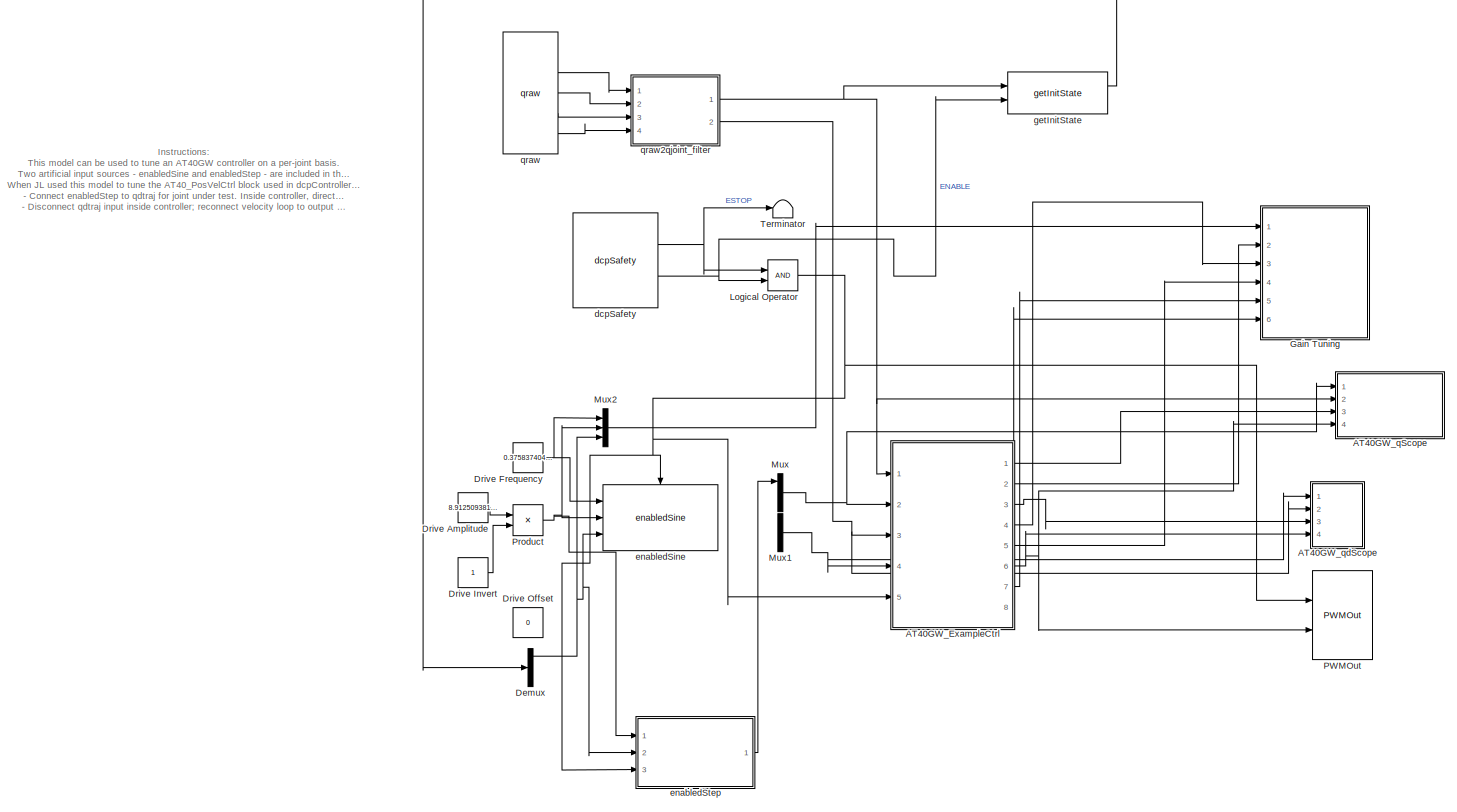
[diagram: root canvas - part 1/1, most of the canvas]
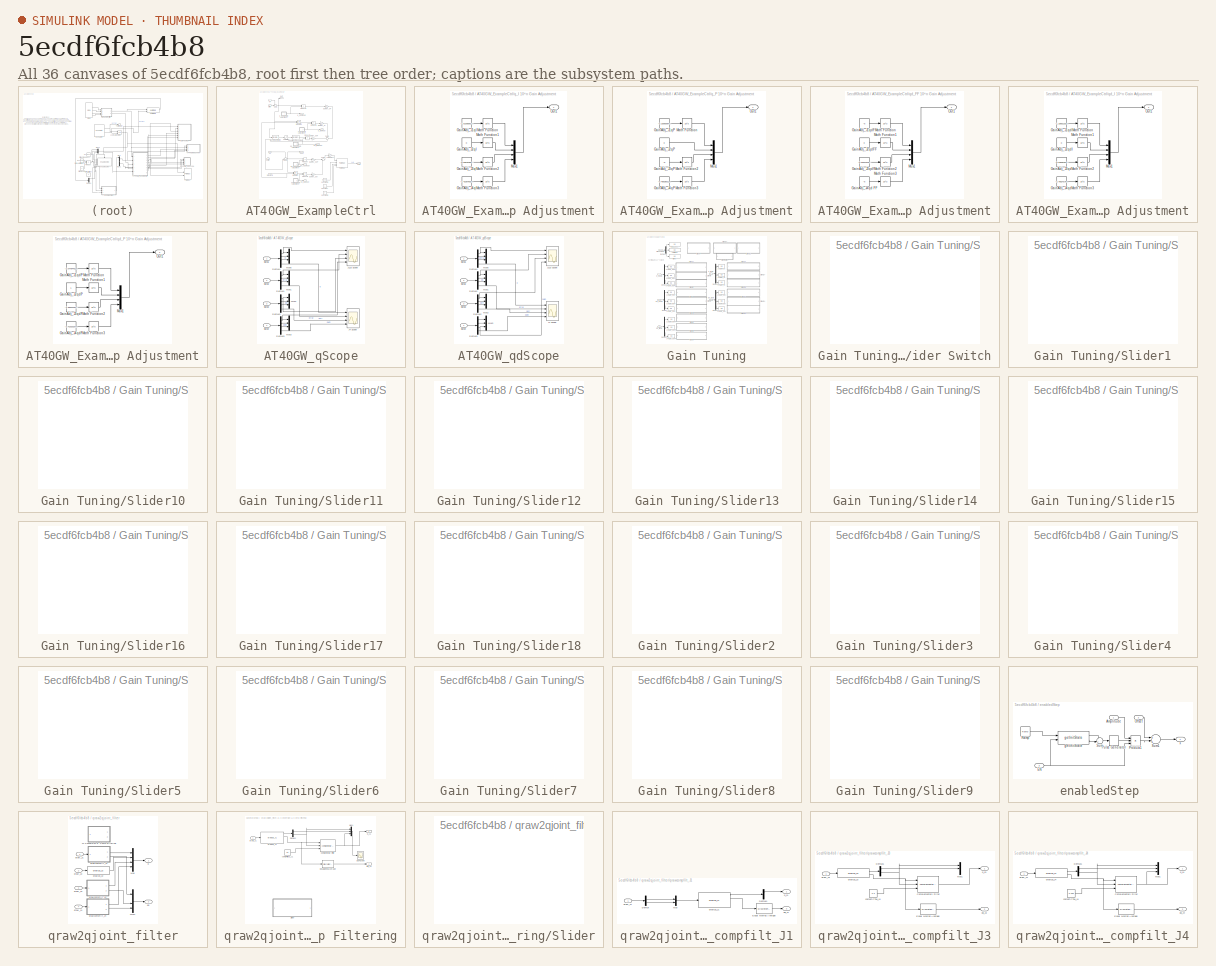
[diagram: thumbnail index - all 36 canvases of the model, root first then tree order]
MODEL slx_5ecdf6fcb4b8
KIND model
CONFIG AbsTol = auto
CONFIG EnableMultiTasking = on
CONFIG FixedStep = 0.001
CONFIG MaxStep = auto
CONFIG MinStep = auto
CONFIG RelTol = 1e-3
CONFIG SampleTimeConstraint = Unconstrained
CONFIG Solver = ode5
CONFIG SolverName = ode5
CONFIG StartTime = 0.0
CONFIG StopTime = inf
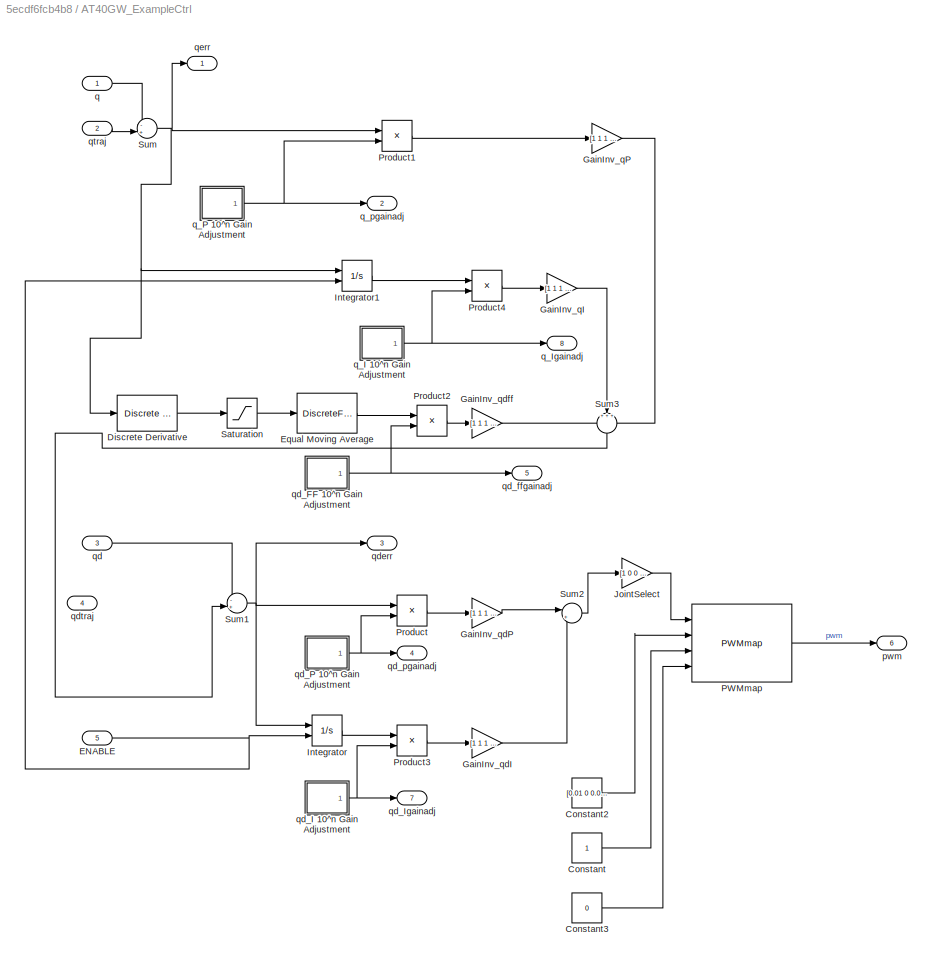
BLOCK [SubSystem] AT40GW_ExampleCtrl
  Ports = [5, 8]
  RequestExecContextInheritance = off
  Variant = off
BLOCK [Constant] AT40GW_ExampleCtrl/Constant
BLOCK [Constant] AT40GW_ExampleCtrl/Constant2
  Value = [0.01 0 0.001 0.001]
BLOCK [Constant] AT40GW_ExampleCtrl/Constant3
  Value = 0
BLOCK [Reference] AT40GW_ExampleCtrl/Discrete Derivative  REF=simulink/Discrete/Discrete Derivative
  Ports = [1, 1]
  SourceBlock = simulink/Discrete/Discrete Derivative
  SourceType = Discrete Derivative
BLOCK [Inport] AT40GW_ExampleCtrl/ENABLE
  IconDisplay = Port number
  Port = 5
BLOCK [DiscreteFir] AT40GW_ExampleCtrl/Equal Moving Average
  Coefficients = repmat([1/250],1,250)
  InputPortMap = u0
  InputProcessing = Columns as channels (frame based)
  OutputPortMap = o0
  Ports = [1, 1]
BLOCK [Gain] AT40GW_ExampleCtrl/GainInv_qI
  Gain = [1 1 1 1]
  OutDataTypeStr = Inherit: Inherit via internal rule
  ParamDataTypeStr = Inherit: Inherit via internal rule
  SaturateOnIntegerOverflow = off
BLOCK [Gain] AT40GW_ExampleCtrl/GainInv_qP
  Gain = [1 1 1 1]
  OutDataTypeStr = Inherit: Inherit via internal rule
  ParamDataTypeStr = Inherit: Inherit via internal rule
  SaturateOnIntegerOverflow = off
BLOCK [Gain] AT40GW_ExampleCtrl/GainInv_qdI
  Gain = [1 1 1 -1]
  OutDataTypeStr = Inherit: Inherit via internal rule
  ParamDataTypeStr = Inherit: Inherit via internal rule
  SaturateOnIntegerOverflow = off
BLOCK [Gain] AT40GW_ExampleCtrl/GainInv_qdP
  Gain = [1 1 1 -1]
  OutDataTypeStr = Inherit: Inherit via internal rule
  ParamDataTypeStr = Inherit: Inherit via internal rule
  SaturateOnIntegerOverflow = off
BLOCK [Gain] AT40GW_ExampleCtrl/GainInv_qdff
  Gain = [1 1 1 1]
  OutDataTypeStr = Inherit: Inherit via internal rule
  ParamDataTypeStr = Inherit: Inherit via internal rule
  SaturateOnIntegerOverflow = off
BLOCK [Integrator] AT40GW_ExampleCtrl/Integrator
  ExternalReset = rising
  LimitOutput = on
  LowerSaturationLimit = [-100 -10 -10 -1000]
  Ports = [2, 1]
  UpperSaturationLimit = [100 10 10 1000]
BLOCK [Integrator] AT40GW_ExampleCtrl/Integrator1
  ExternalReset = rising
  LimitOutput = on
  LowerSaturationLimit = [-10 -2 -10 -20]
  Ports = [2, 1]
  UpperSaturationLimit = [10 2 10 20]
BLOCK [Gain] AT40GW_ExampleCtrl/JointSelect
  Gain = [1 0 0 0]
  OutDataTypeStr = Inherit: Inherit via internal rule
  ParamDataTypeStr = Inherit: Inherit via internal rule
  SaturateOnIntegerOverflow = off
BLOCK [Reference] AT40GW_ExampleCtrl/PWMmap  REF=dcpctrl/PWMmap
  Ports = [4, 1]
  SourceBlock = dcpctrl/PWMmap
  SourceType = PWMmap
BLOCK [Product] AT40GW_ExampleCtrl/Product
  InputSameDT = off
  OutDataTypeStr = Inherit: Inherit via internal rule
  Ports = [2, 1]
  RndMeth = Floor
  SaturateOnIntegerOverflow = off
BLOCK [Product] AT40GW_ExampleCtrl/Product1
  InputSameDT = off
  OutDataTypeStr = Inherit: Inherit via internal rule
  Ports = [2, 1]
  RndMeth = Floor
  SaturateOnIntegerOverflow = off
BLOCK [Product] AT40GW_ExampleCtrl/Product2
  InputSameDT = off
  OutDataTypeStr = Inherit: Inherit via internal rule
  Ports = [2, 1]
  RndMeth = Floor
  SaturateOnIntegerOverflow = off
BLOCK [Product] AT40GW_ExampleCtrl/Product3
  InputSameDT = off
  OutDataTypeStr = Inherit: Inherit via internal rule
  Ports = [2, 1]
  RndMeth = Floor
  SaturateOnIntegerOverflow = off
BLOCK [Product] AT40GW_ExampleCtrl/Product4
  InputSameDT = off
  OutDataTypeStr = Inherit: Inherit via internal rule
  Ports = [2, 1]
  RndMeth = Floor
  SaturateOnIntegerOverflow = off
BLOCK [Saturate] AT40GW_ExampleCtrl/Saturation
  InputPortMap = u0
  LowerLimit = -100
  Ports = [1, 1]
  UpperLimit = 100
BLOCK [Sum] AT40GW_ExampleCtrl/Sum
  IconShape = round
  InputSameDT = off
  Inputs = -+|
  OutDataTypeStr = Inherit: Inherit via internal rule
  Ports = [2, 1]
  SaturateOnIntegerOverflow = off
BLOCK [Sum] AT40GW_ExampleCtrl/Sum1
  IconShape = round
  InputSameDT = off
  Inputs = -+|
  OutDataTypeStr = Inherit: Inherit via internal rule
  Ports = [2, 1]
  SaturateOnIntegerOverflow = off
BLOCK [Sum] AT40GW_ExampleCtrl/Sum2
  IconShape = round
  InputSameDT = off
  Inputs = |++
  OutDataTypeStr = Inherit: Inherit via internal rule
  Ports = [2, 1]
  SaturateOnIntegerOverflow = off
BLOCK [Sum] AT40GW_ExampleCtrl/Sum3
  IconShape = round
  InputSameDT = off
  Inputs = +++
  OutDataTypeStr = Inherit: Inherit via internal rule
  Ports = [3, 1]
  SaturateOnIntegerOverflow = off
BLOCK [Outport] AT40GW_ExampleCtrl/pwm
  IconDisplay = Port number
  Port = 6
BLOCK [Inport] AT40GW_ExampleCtrl/q
  IconDisplay = Port number
BLOCK [SubSystem] AT40GW_ExampleCtrl/q_I 10^n Gain Adjustment
  Ports = [0, 1]
  RequestExecContextInheritance = off
  Variant = off
BLOCK [Constant] AT40GW_ExampleCtrl/q_I 10^n Gain Adjustment/GainAdj_J1qI
  Value = -1.010989010989
BLOCK [Constant] AT40GW_ExampleCtrl/q_I 10^n Gain Adjustment/GainAdj_J2qI
  Value = 0
BLOCK [Constant] AT40GW_ExampleCtrl/q_I 10^n Gain Adjustment/GainAdj_J3qI
  Value = -0.505494505495
BLOCK [Constant] AT40GW_ExampleCtrl/q_I 10^n Gain Adjustment/GainAdj_J4qI
  Value = -1.423076923077
BLOCK [Math] AT40GW_ExampleCtrl/q_I 10^n Gain Adjustment/Math Function
  Operator = 10^u
  Ports = [1, 1]
BLOCK [Math] AT40GW_ExampleCtrl/q_I 10^n Gain Adjustment/Math Function1
  Operator = 10^u
  Ports = [1, 1]
BLOCK [Math] AT40GW_ExampleCtrl/q_I 10^n Gain Adjustment/Math Function2
  Operator = 10^u
  Ports = [1, 1]
BLOCK [Math] AT40GW_ExampleCtrl/q_I 10^n Gain Adjustment/Math Function3
  Operator = 10^u
  Ports = [1, 1]
BLOCK [Mux] AT40GW_ExampleCtrl/q_I 10^n Gain Adjustment/Mux1
  DisplayOption = bar
  Ports = [4, 1]
BLOCK [Outport] AT40GW_ExampleCtrl/q_I 10^n Gain Adjustment/Out1
  IconDisplay = Port number
BLOCK [Outport] AT40GW_ExampleCtrl/q_Igainadj
  IconDisplay = Port number
  Port = 8
BLOCK [SubSystem] AT40GW_ExampleCtrl/q_P 10^n Gain Adjustment
  Ports = [0, 1]
  RequestExecContextInheritance = off
  Variant = off
BLOCK [Constant] AT40GW_ExampleCtrl/q_P 10^n Gain Adjustment/GainAdj_J1qP
  Value = -0.169590643275
BLOCK [Constant] AT40GW_ExampleCtrl/q_P 10^n Gain Adjustment/GainAdj_J2qP
  Value = 0
BLOCK [Constant] AT40GW_ExampleCtrl/q_P 10^n Gain Adjustment/GainAdj_J3qP
  Value = -5
BLOCK [Constant] AT40GW_ExampleCtrl/q_P 10^n Gain Adjustment/GainAdj_J4qP
  Value = -0.485380116959
BLOCK [Math] AT40GW_ExampleCtrl/q_P 10^n Gain Adjustment/Math Function
  Operator = 10^u
  Ports = [1, 1]
BLOCK [Math] AT40GW_ExampleCtrl/q_P 10^n Gain Adjustment/Math Function2
  Operator = 10^u
  Ports = [1, 1]
BLOCK [Math] AT40GW_ExampleCtrl/q_P 10^n Gain Adjustment/Math Function3
  Operator = 10^u
  Ports = [1, 1]
BLOCK [Mux] AT40GW_ExampleCtrl/q_P 10^n Gain Adjustment/Mux1
  DisplayOption = bar
  Ports = [4, 1]
BLOCK [Outport] AT40GW_ExampleCtrl/q_P 10^n Gain Adjustment/Out1
  IconDisplay = Port number
BLOCK [Outport] AT40GW_ExampleCtrl/q_pgainadj
  IconDisplay = Port number
  Port = 2
BLOCK [Inport] AT40GW_ExampleCtrl/qd
  IconDisplay = Port number
  Port = 3
BLOCK [SubSystem] AT40GW_ExampleCtrl/qd_FF 10^n Gain Adjustment
  Ports = [0, 1]
  RequestExecContextInheritance = off
  Variant = off
BLOCK [Constant] AT40GW_ExampleCtrl/qd_FF 10^n Gain Adjustment/GainAdj_J1qdFF
  Value = -5
BLOCK [Constant] AT40GW_ExampleCtrl/qd_FF 10^n Gain Adjustment/GainAdj_J2qdFF
  Value = 0
BLOCK [Constant] AT40GW_ExampleCtrl/qd_FF 10^n Gain Adjustment/GainAdj_J3qdFF
  Value = -0.940119760479
BLOCK [Constant] AT40GW_ExampleCtrl/qd_FF 10^n Gain Adjustment/GainAdj_J4qd FF
  Value = -5
BLOCK [Math] AT40GW_ExampleCtrl/qd_FF 10^n Gain Adjustment/Math Function
  Operator = 10^u
  Ports = [1, 1]
BLOCK [Math] AT40GW_ExampleCtrl/qd_FF 10^n Gain Adjustment/Math Function1
  Operator = 10^u
  Ports = [1, 1]
BLOCK [Math] AT40GW_ExampleCtrl/qd_FF 10^n Gain Adjustment/Math Function2
  Operator = 10^u
  Ports = [1, 1]
BLOCK [Math] AT40GW_ExampleCtrl/qd_FF 10^n Gain Adjustment/Math Function3
  Operator = 10^u
  Ports = [1, 1]
BLOCK [Mux] AT40GW_ExampleCtrl/qd_FF 10^n Gain Adjustment/Mux1
  DisplayOption = bar
  Ports = [4, 1]
BLOCK [Outport] AT40GW_ExampleCtrl/qd_FF 10^n Gain Adjustment/Out1
  IconDisplay = Port number
BLOCK [SubSystem] AT40GW_ExampleCtrl/qd_I 10^n Gain Adjustment
  Ports = [0, 1]
  RequestExecContextInheritance = off
  Variant = off
BLOCK [Constant] AT40GW_ExampleCtrl/qd_I 10^n Gain Adjustment/GainAdj_J1qdI
  Value = -1.186813186813
BLOCK [Constant] AT40GW_ExampleCtrl/qd_I 10^n Gain Adjustment/GainAdj_J2qdI
  Value = 0
BLOCK [Constant] AT40GW_ExampleCtrl/qd_I 10^n Gain Adjustment/GainAdj_J3qdI
  Value = -0.945054945055
BLOCK [Constant] AT40GW_ExampleCtrl/qd_I 10^n Gain Adjustment/GainAdj_J4qdI
  Value = -2.758241758242
BLOCK [Math] AT40GW_ExampleCtrl/qd_I 10^n Gain Adjustment/Math Function
  Operator = 10^u
  Ports = [1, 1]
BLOCK [Math] AT40GW_ExampleCtrl/qd_I 10^n Gain Adjustment/Math Function1
  Operator = 10^u
  Ports = [1, 1]
BLOCK [Math] AT40GW_ExampleCtrl/qd_I 10^n Gain Adjustment/Math Function2
  Operator = 10^u
  Ports = [1, 1]
BLOCK [Math] AT40GW_ExampleCtrl/qd_I 10^n Gain Adjustment/Math Function3
  Operator = 10^u
  Ports = [1, 1]
BLOCK [Mux] AT40GW_ExampleCtrl/qd_I 10^n Gain Adjustment/Mux1
  DisplayOption = bar
  Ports = [4, 1]
BLOCK [Outport] AT40GW_ExampleCtrl/qd_I 10^n Gain Adjustment/Out1
  IconDisplay = Port number
BLOCK [Outport] AT40GW_ExampleCtrl/qd_Igainadj
  IconDisplay = Port number
  Port = 7
BLOCK [SubSystem] AT40GW_ExampleCtrl/qd_P 10^n Gain Adjustment
  Ports = [0, 1]
  RequestExecContextInheritance = off
  Variant = off
BLOCK [Constant] AT40GW_ExampleCtrl/qd_P 10^n Gain Adjustment/GainAdj_J1qdP
  Value = -2.077844311377
BLOCK [Constant] AT40GW_ExampleCtrl/qd_P 10^n Gain Adjustment/GainAdj_J2qdP
BLOCK [Constant] AT40GW_ExampleCtrl/qd_P 10^n Gain Adjustment/GainAdj_J3qdP
  Value = -1.994011976048
BLOCK [Constant] AT40GW_ExampleCtrl/qd_P 10^n Gain Adjustment/GainAdj_J4qdP
  Value = -3.419161676647
BLOCK [Math] AT40GW_ExampleCtrl/qd_P 10^n Gain Adjustment/Math Function
  Operator = 10^u
  Ports = [1, 1]
BLOCK [Math] AT40GW_ExampleCtrl/qd_P 10^n Gain Adjustment/Math Function1
  Operator = 10^u
  Ports = [1, 1]
BLOCK [Math] AT40GW_ExampleCtrl/qd_P 10^n Gain Adjustment/Math Function2
  Operator = 10^u
  Ports = [1, 1]
BLOCK [Math] AT40GW_ExampleCtrl/qd_P 10^n Gain Adjustment/Math Function3
  Operator = 10^u
  Ports = [1, 1]
BLOCK [Mux] AT40GW_ExampleCtrl/qd_P 10^n Gain Adjustment/Mux1
  DisplayOption = bar
  Ports = [4, 1]
BLOCK [Outport] AT40GW_ExampleCtrl/qd_P 10^n Gain Adjustment/Out1
  IconDisplay = Port number
BLOCK [Outport] AT40GW_ExampleCtrl/qd_ffgainadj
  IconDisplay = Port number
  Port = 5
BLOCK [Outport] AT40GW_ExampleCtrl/qd_pgainadj
  IconDisplay = Port number
  Port = 4
BLOCK [Outport] AT40GW_ExampleCtrl/qderr
  IconDisplay = Port number
  Port = 3
BLOCK [Inport] AT40GW_ExampleCtrl/qdtraj
  IconDisplay = Port number
  Port = 4
BLOCK [Outport] AT40GW_ExampleCtrl/qerr
  IconDisplay = Port number
BLOCK [Inport] AT40GW_ExampleCtrl/qtraj
  IconDisplay = Port number
  Port = 2
BLOCK [SubSystem] AT40GW_qScope
  AncestorBlock = dcpctrl/AT40GW_qScope
  Ports = [4]
  RequestExecContextInheritance = off
  Variant = off
BLOCK [Demux] AT40GW_qScope/Demux1
  DisplayOption = bar
  Ports = [1, 4]
BLOCK [Demux] AT40GW_qScope/Demux2
  DisplayOption = bar
  Ports = [1, 4]
BLOCK [Demux] AT40GW_qScope/Demux3
  DisplayOption = bar
  Ports = [1, 4]
BLOCK [Demux] AT40GW_qScope/Demux4
  DisplayOption = bar
  Ports = [1, 4]
BLOCK [Scope] AT40GW_qScope/J123 Scope
  NumInputPorts = 4
  Ports = [4]
  ScopeSpecificationString = Simulink.scopes.TimeScopeBlockCfg('CurrentConfiguration', extmgr.ConfigurationSet(extmgr.Configuration('Core','General UI',true,'FigureColor',[1 1 1]),extmgr.Configuration('Core','Source UI',true),extmgr.Configuration('Sources','WiredSimulink',true,'DataLoggingVariableName','ScopeData1'),extmgr.Configuration('Visuals','Time Domain',true,'SerializedDisplays',{struct('MinYLimReal','-1.50078','MaxYLi...<+5141ch>
BLOCK [Scope] AT40GW_qScope/J4 Scope
  NumInputPorts = 4
  Ports = [4]
  ScopeSpecificationString = Simulink.scopes.TimeScopeBlockCfg('CurrentConfiguration', extmgr.ConfigurationSet(extmgr.Configuration('Core','General UI',true,'FigureColor',[1 1 1]),extmgr.Configuration('Core','Source UI',true),extmgr.Configuration('Sources','WiredSimulink',true,'DataLoggingVariableName','ScopeData2'),extmgr.Configuration('Visuals','Time Domain',true,'SerializedDisplays',{struct('MinYLimReal','-131.8961','MaxYL...<+5196ch>
BLOCK [Mux] AT40GW_qScope/Mux1
  DisplayOption = bar
  Inputs = 3
  Ports = [3, 1]
BLOCK [Mux] AT40GW_qScope/Mux2
  DisplayOption = bar
  Inputs = 3
  Ports = [3, 1]
BLOCK [Mux] AT40GW_qScope/Mux3
  DisplayOption = bar
  Inputs = 3
  Ports = [3, 1]
BLOCK [Mux] AT40GW_qScope/Mux6
  DisplayOption = bar
  Inputs = 3
  Ports = [3, 1]
BLOCK [Inport] AT40GW_qScope/Signal1
  IconDisplay = Port number
BLOCK [Inport] AT40GW_qScope/Signal2
  IconDisplay = Port number
  Port = 2
BLOCK [Inport] AT40GW_qScope/Signal3
  IconDisplay = Port number
  Port = 3
BLOCK [Inport] AT40GW_qScope/Signal4
  IconDisplay = Port number
  Port = 4
BLOCK [SubSystem] AT40GW_qdScope
  AncestorBlock = dcpctrl/AT40GW_qScope
  Ports = [4]
  RequestExecContextInheritance = off
  Variant = off
BLOCK [Demux] AT40GW_qdScope/Demux1
  DisplayOption = bar
  Ports = [1, 4]
BLOCK [Demux] AT40GW_qdScope/Demux2
  DisplayOption = bar
  Ports = [1, 4]
BLOCK [Demux] AT40GW_qdScope/Demux3
  DisplayOption = bar
  Ports = [1, 4]
BLOCK [Demux] AT40GW_qdScope/Demux4
  DisplayOption = bar
  Ports = [1, 4]
BLOCK [Scope] AT40GW_qdScope/J123 Scope
  NumInputPorts = 4
  Ports = [4]
  ScopeSpecificationString = Simulink.scopes.TimeScopeBlockCfg('CurrentConfiguration', extmgr.ConfigurationSet(extmgr.Configuration('Core','General UI',true,'FigureColor',[1 1 1]),extmgr.Configuration('Core','Source UI',true),extmgr.Configuration('Sources','WiredSimulink',true,'DataLoggingVariableName','ScopeData1'),extmgr.Configuration('Visuals','Time Domain',true,'SerializedDisplays',{struct('MinYLimReal','-0.88493','MaxYLi...<+5185ch>
BLOCK [Scope] AT40GW_qdScope/J4 Scope
  NumInputPorts = 4
  Ports = [4]
  ScopeSpecificationString = Simulink.scopes.TimeScopeBlockCfg('CurrentConfiguration', extmgr.ConfigurationSet(extmgr.Configuration('Core','General UI',true,'FigureColor',[1 1 1]),extmgr.Configuration('Core','Source UI',true),extmgr.Configuration('Sources','WiredSimulink',true,'DataLoggingVariableName','ScopeData2'),extmgr.Configuration('Visuals','Time Domain',true,'SerializedDisplays',{struct('MinYLimReal','-32.99569','MaxYL...<+5175ch>
BLOCK [Mux] AT40GW_qdScope/Mux1
  DisplayOption = bar
  Inputs = 3
  Ports = [3, 1]
BLOCK [Mux] AT40GW_qdScope/Mux2
  DisplayOption = bar
  Inputs = 3
  Ports = [3, 1]
BLOCK [Mux] AT40GW_qdScope/Mux3
  DisplayOption = bar
  Inputs = 3
  Ports = [3, 1]
BLOCK [Mux] AT40GW_qdScope/Mux6
  DisplayOption = bar
  Inputs = 3
  Ports = [3, 1]
BLOCK [Inport] AT40GW_qdScope/Signal1
  IconDisplay = Port number
BLOCK [Inport] AT40GW_qdScope/Signal2
  IconDisplay = Port number
  Port = 2
BLOCK [Inport] AT40GW_qdScope/Signal3
  IconDisplay = Port number
  Port = 3
BLOCK [Inport] AT40GW_qdScope/Signal4
  IconDisplay = Port number
  Port = 4
BLOCK [Demux] Demux
  DisplayOption = bar
  Ports = [1, 4]
BLOCK [Constant] Drive Amplitude
  Value = 8.9125093813375
BLOCK [Constant] Drive Frequency
  Value = 0.3758374042884
BLOCK [Constant] Drive Invert
BLOCK [Constant] Drive Offset
  Value = 0
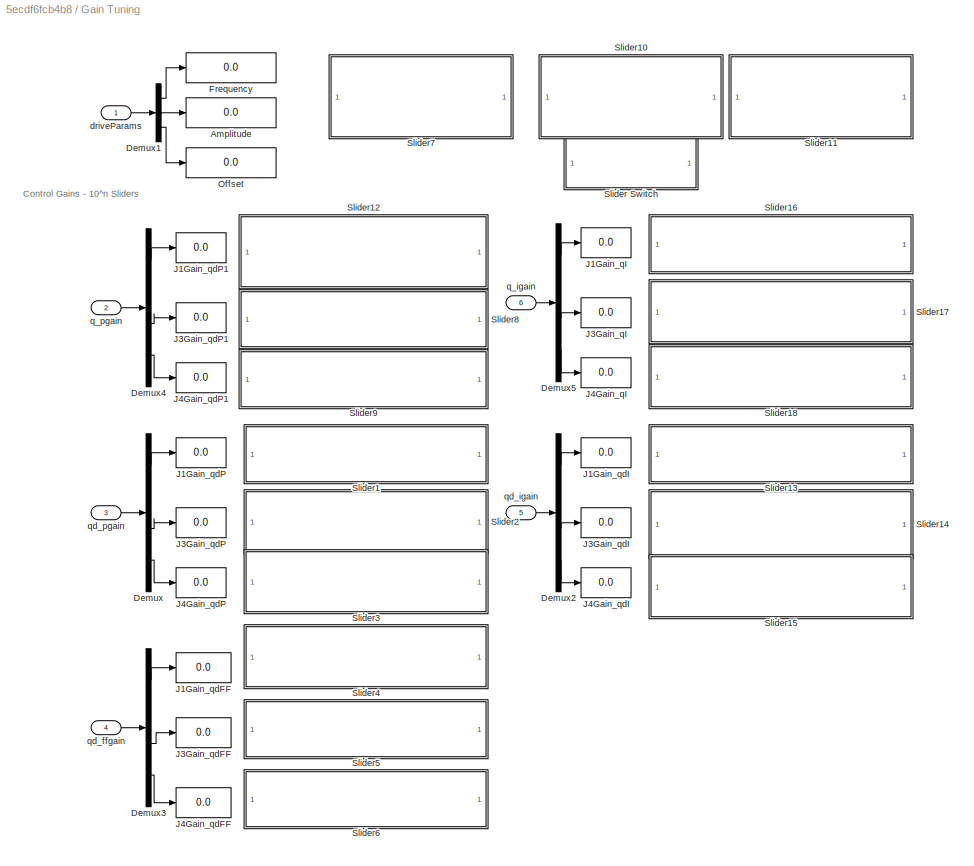
BLOCK [SubSystem] Gain Tuning
  Ports = [6]
  RequestExecContextInheritance = off
  Variant = off
BLOCK [Display] Gain Tuning/Amplitude
  Decimation = 1
  Ports = [1]
BLOCK [Demux] Gain Tuning/Demux
  DisplayOption = bar
  Ports = [1, 4]
BLOCK [Demux] Gain Tuning/Demux1
  DisplayOption = bar
  Outputs = 3
  Ports = [1, 3]
BLOCK [Demux] Gain Tuning/Demux2
  DisplayOption = bar
  Ports = [1, 4]
BLOCK [Demux] Gain Tuning/Demux3
  DisplayOption = bar
  Ports = [1, 4]
BLOCK [Demux] Gain Tuning/Demux4
  DisplayOption = bar
  Ports = [1, 4]
BLOCK [Demux] Gain Tuning/Demux5
  DisplayOption = bar
  Ports = [1, 4]
BLOCK [Display] Gain Tuning/Frequency
  Decimation = 1
  Ports = [1]
BLOCK [Display] Gain Tuning/J1Gain_qI
  Decimation = 1
  Ports = [1]
BLOCK [Display] Gain Tuning/J1Gain_qdFF
  Decimation = 1
  Ports = [1]
BLOCK [Display] Gain Tuning/J1Gain_qdI
  Decimation = 1
  Ports = [1]
BLOCK [Display] Gain Tuning/J1Gain_qdP
  Decimation = 1
  Ports = [1]
BLOCK [Display] Gain Tuning/J1Gain_qdP1
  Decimation = 1
  Ports = [1]
BLOCK [Display] Gain Tuning/J3Gain_qI
  Decimation = 1
  Ports = [1]
BLOCK [Display] Gain Tuning/J3Gain_qdFF
  Decimation = 1
  Ports = [1]
BLOCK [Display] Gain Tuning/J3Gain_qdI
  Decimation = 1
  Ports = [1]
BLOCK [Display] Gain Tuning/J3Gain_qdP
  Decimation = 1
  Ports = [1]
BLOCK [Display] Gain Tuning/J3Gain_qdP1
  Decimation = 1
  Ports = [1]
BLOCK [Display] Gain Tuning/J4Gain_qI
  Decimation = 1
  Ports = [1]
BLOCK [Display] Gain Tuning/J4Gain_qdFF
  Decimation = 1
  Ports = [1]
BLOCK [Display] Gain Tuning/J4Gain_qdI
  Decimation = 1
  Ports = [1]
BLOCK [Display] Gain Tuning/J4Gain_qdP
  Decimation = 1
  Ports = [1]
BLOCK [Display] Gain Tuning/J4Gain_qdP1
  Decimation = 1
  Ports = [1]
BLOCK [Display] Gain Tuning/Offset
  Decimation = 1
  Ports = [1]
BLOCK [SubSystem] Gain Tuning/Slider Switch
  DialogController = hmiCreateDDGDialog
  IsWebBlock = on
  MaskHideContents = on
  Ports = []
  RequestExecContextInheritance = off
  Variant = off
BLOCK [SubSystem] Gain Tuning/Slider1
  DialogController = hmiCreateDDGDialog
  IsWebBlock = on
  MaskHideContents = on
  Ports = []
  RequestExecContextInheritance = off
  Variant = off
BLOCK [SubSystem] Gain Tuning/Slider10
  DialogController = hmiCreateDDGDialog
  IsWebBlock = on
  MaskHideContents = on
  Ports = []
  RequestExecContextInheritance = off
  Variant = off
BLOCK [SubSystem] Gain Tuning/Slider11
  DialogController = hmiCreateDDGDialog
  IsWebBlock = on
  MaskHideContents = on
  Ports = []
  RequestExecContextInheritance = off
  Variant = off
BLOCK [SubSystem] Gain Tuning/Slider12
  DialogController = hmiCreateDDGDialog
  IsWebBlock = on
  MaskHideContents = on
  Ports = []
  RequestExecContextInheritance = off
  Variant = off
BLOCK [SubSystem] Gain Tuning/Slider13
  DialogController = hmiCreateDDGDialog
  IsWebBlock = on
  MaskHideContents = on
  Ports = []
  RequestExecContextInheritance = off
  Variant = off
BLOCK [SubSystem] Gain Tuning/Slider14
  DialogController = hmiCreateDDGDialog
  IsWebBlock = on
  MaskHideContents = on
  Ports = []
  RequestExecContextInheritance = off
  Variant = off
BLOCK [SubSystem] Gain Tuning/Slider15
  DialogController = hmiCreateDDGDialog
  IsWebBlock = on
  MaskHideContents = on
  Ports = []
  RequestExecContextInheritance = off
  Variant = off
BLOCK [SubSystem] Gain Tuning/Slider16
  DialogController = hmiCreateDDGDialog
  IsWebBlock = on
  MaskHideContents = on
  Ports = []
  RequestExecContextInheritance = off
  Variant = off
BLOCK [SubSystem] Gain Tuning/Slider17
  DialogController = hmiCreateDDGDialog
  IsWebBlock = on
  MaskHideContents = on
  Ports = []
  RequestExecContextInheritance = off
  Variant = off
BLOCK [SubSystem] Gain Tuning/Slider18
  DialogController = hmiCreateDDGDialog
  IsWebBlock = on
  MaskHideContents = on
  Ports = []
  RequestExecContextInheritance = off
  Variant = off
BLOCK [SubSystem] Gain Tuning/Slider2
  DialogController = hmiCreateDDGDialog
  IsWebBlock = on
  MaskHideContents = on
  Ports = []
  RequestExecContextInheritance = off
  Variant = off
BLOCK [SubSystem] Gain Tuning/Slider3
  DialogController = hmiCreateDDGDialog
  IsWebBlock = on
  MaskHideContents = on
  Ports = []
  RequestExecContextInheritance = off
  Variant = off
BLOCK [SubSystem] Gain Tuning/Slider4
  DialogController = hmiCreateDDGDialog
  IsWebBlock = on
  MaskHideContents = on
  Ports = []
  RequestExecContextInheritance = off
  Variant = off
BLOCK [SubSystem] Gain Tuning/Slider5
  DialogController = hmiCreateDDGDialog
  IsWebBlock = on
  MaskHideContents = on
  Ports = []
  RequestExecContextInheritance = off
  Variant = off
BLOCK [SubSystem] Gain Tuning/Slider6
  DialogController = hmiCreateDDGDialog
  IsWebBlock = on
  MaskHideContents = on
  Ports = []
  RequestExecContextInheritance = off
  Variant = off
BLOCK [SubSystem] Gain Tuning/Slider7
  DialogController = hmiCreateDDGDialog
  IsWebBlock = on
  MaskHideContents = on
  Ports = []
  RequestExecContextInheritance = off
  Variant = off
BLOCK [SubSystem] Gain Tuning/Slider8
  DialogController = hmiCreateDDGDialog
  IsWebBlock = on
  MaskHideContents = on
  Ports = []
  RequestExecContextInheritance = off
  Variant = off
BLOCK [SubSystem] Gain Tuning/Slider9
  DialogController = hmiCreateDDGDialog
  IsWebBlock = on
  MaskHideContents = on
  Ports = []
  RequestExecContextInheritance = off
  Variant = off
BLOCK [Inport] Gain Tuning/driveParams 
  IconDisplay = Port number
BLOCK [Inport] Gain Tuning/q_igain
  IconDisplay = Port number
  Port = 6
BLOCK [Inport] Gain Tuning/q_pgain
  IconDisplay = Port number
  Port = 2
BLOCK [Inport] Gain Tuning/qd_ffgain
  IconDisplay = Port number
  Port = 4
BLOCK [Inport] Gain Tuning/qd_igain
  IconDisplay = Port number
  Port = 5
BLOCK [Inport] Gain Tuning/qd_pgain
  IconDisplay = Port number
  Port = 3
BLOCK [Logic] Logical Operator
  AllPortsSameDT = off
  OutDataTypeStr = boolean
  Ports = [2, 1]
BLOCK [Mux] Mux
  DisplayOption = bar
  Ports = [4, 1]
BLOCK [Mux] Mux1
  DisplayOption = bar
  Ports = [4, 1]
BLOCK [Mux] Mux2
  DisplayOption = bar
  Inputs = 3
  Ports = [3, 1]
BLOCK [Reference] PWMOut  REF=dcpctrl/PWMOut
  Ports = [2]
  SourceBlock = dcpctrl/PWMOut
  SourceType = SubSystem
BLOCK [Product] Product
  InputSameDT = off
  OutDataTypeStr = Inherit: Inherit via internal rule
  Ports = [2, 1]
  RndMeth = Floor
  SaturateOnIntegerOverflow = off
BLOCK [Terminator] Terminator
BLOCK [Reference] dcpSafety  REF=dcpctrl/dcpSafety
  Ports = [0, 2]
  SourceBlock = dcpctrl/dcpSafety
  SourceType = SubSystem
BLOCK [Reference] enabledSine  REF=dcpctrl/enabledSine
  Ports = [3, 2, 1]
  SourceBlock = dcpctrl/enabledSine
  SourceType = SubSystem
BLOCK [SubSystem] enabledStep 
  AncestorBlock = dcpctrl/enabledStep
  Ports = [3, 1]
  RequestExecContextInheritance = off
  Variant = off
BLOCK [Inport] enabledStep /Amplitude
  IconDisplay = Port number
BLOCK [Inport] enabledStep /EN
  IconDisplay = Port number
  Port = 3
BLOCK [Inport] enabledStep /Offset
  IconDisplay = Port number
  Port = 2
BLOCK [Product] enabledStep /Product1
  InputSameDT = off
  Inputs = 3
  OutDataTypeStr = Inherit: Inherit via internal rule
  Ports = [3, 1]
  RndMeth = Floor
  SaturateOnIntegerOverflow = off
BLOCK [DiscretePulseGenerator] enabledStep /Pulse Generator
  Period = 20
  PhaseDelay = 1
  Ports = [1, 1]
  PulseType = Time based
  PulseWidth = 50
  TimeSource = Use external signal
BLOCK [Reference] enabledStep /Ramp  REF=simulink/Sources/Ramp
  Ports = [0, 1]
  SourceBlock = simulink/Sources/Ramp
  SourceType = Ramp
BLOCK [Sum] enabledStep /Sum
  IconShape = round
  InputSameDT = off
  Inputs = -+|
  OutDataTypeStr = Inherit: Inherit via internal rule
  Ports = [2, 1]
  SaturateOnIntegerOverflow = off
BLOCK [Sum] enabledStep /Sum1
  InputSameDT = off
  Inputs = +|+
  OutDataTypeStr = Inherit: Inherit via internal rule
  Ports = [2, 1]
  SaturateOnIntegerOverflow = off
BLOCK [Reference] enabledStep /getInitState  REF=dcpctrl/getInitState
  Ports = [2, 2]
  SourceBlock = dcpctrl/getInitState
  SourceType = SubSystem
BLOCK [Outport] enabledStep /x
  IconDisplay = Port number
BLOCK [Reference] getInitState  REF=dcpctrl/getInitState
  Ports = [2, 2]
  SourceBlock = dcpctrl/getInitState
  SourceType = SubSystem
BLOCK [Reference] qraw  REF=dcpctrl/qraw
  Ports = [0, 5]
  SourceBlock = dcpctrl/qraw
  SourceType = SubSystem
BLOCK [SubSystem] qraw2qjoint_filter
  Ports = [4, 2]
  RequestExecContextInheritance = off
  Variant = off
BLOCK [SubSystem] qraw2qjoint_filter/J1 Conversion & Comp Filtering
  Commented = on
  Ports = [1, 2]
  RequestExecContextInheritance = off
  Variant = off
BLOCK [Reference] qraw2qjoint_filter/J1 Conversion & Comp Filtering/Complementary Filter  REF=dcpctrl/complementaryFilter
  Ports = [3, 1]
  SourceBlock = dcpctrl/complementaryFilter
  SourceType = SubSystem
BLOCK [Scope] qraw2qjoint_filter/J1 Conversion & Comp Filtering/DCP Scope
  NumInputPorts = 1
  Ports = [1]
  ScopeSpecificationString = Simulink.scopes.TimeScopeBlockCfg('CurrentConfiguration', extmgr.ConfigurationSet(extmgr.Configuration('Core','General UI',true,'FigureColor',[1 1 1]),extmgr.Configuration('Core','Source UI',true),extmgr.Configuration('Sources','WiredSimulink',true,'DataLoggingVariableName','ScopeData1'),extmgr.Configuration('Visuals','Time Domain',true,'SerializedDisplays',{struct('MinYLimReal','-28.2041','MaxYLi...<+1930ch>
BLOCK [Demux] qraw2qjoint_filter/J1 Conversion & Comp Filtering/Demux1
  DisplayOption = bar
  Outputs = 2
  Ports = [1, 2]
BLOCK [DiscreteFir] qraw2qjoint_filter/J1 Conversion & Comp Filtering/Equal Moving Average
  Coefficients = [0.1 0.1 0.1 0.1 0.1 0.1 0.1 0.1 0.1 0.1]
  InputPortMap = u0
  InputProcessing = Columns as channels (frame based)
  OutputPortMap = o0
  Ports = [1, 1]
BLOCK [Mux] qraw2qjoint_filter/J1 Conversion & Comp Filtering/Mux1
  DisplayOption = bar
  Inputs = 3
  Ports = [3, 1]
BLOCK [SubSystem] qraw2qjoint_filter/J1 Conversion & Comp Filtering/Slider
  DialogController = hmiCreateDDGDialog
  IsWebBlock = on
  MaskHideContents = on
  Ports = []
  RequestExecContextInheritance = off
  Variant = off
BLOCK [Constant] qraw2qjoint_filter/J1 Conversion & Comp Filtering/compFiltTau_J1
  Value = 0.5
BLOCK [Outport] qraw2qjoint_filter/J1 Conversion & Comp Filtering/q_J1
  IconDisplay = Port number
BLOCK [Outport] qraw2qjoint_filter/J1 Conversion & Comp Filtering/qd_J1
  IconDisplay = Port number
  Port = 2
BLOCK [Reference] qraw2qjoint_filter/J1 Conversion & Comp Filtering/qraw2q_J1  REF=dcpctrl/qraw2q_J1
  Ports = [1, 4]
  SourceBlock = dcpctrl/qraw2q_J1
  SourceType = SubSystem
BLOCK [Inport] qraw2qjoint_filter/J1 Conversion & Comp Filtering/qraw_J1
  IconDisplay = Port number
BLOCK [Mux] qraw2qjoint_filter/Mux
  DisplayOption = bar
  Ports = [4, 1]
BLOCK [Mux] qraw2qjoint_filter/Mux1
  DisplayOption = bar
  Ports = [4, 1]
BLOCK [Outport] qraw2qjoint_filter/q
  IconDisplay = Port number
BLOCK [Outport] qraw2qjoint_filter/qd
  IconDisplay = Port number
  Port = 2
BLOCK [Reference] qraw2qjoint_filter/qraw2q_J2  REF=dcpctrl/qraw2q_J2
  Ports = [1, 1]
  SourceBlock = dcpctrl/qraw2q_J2
  SourceType = SubSystem
BLOCK [Inport] qraw2qjoint_filter/qraw_J1
  IconDisplay = Port number
BLOCK [Inport] qraw2qjoint_filter/qraw_J2
  IconDisplay = Port number
  Port = 2
BLOCK [Inport] qraw2qjoint_filter/qraw_J3
  IconDisplay = Port number
  Port = 3
BLOCK [Inport] qraw2qjoint_filter/qraw_J4
  IconDisplay = Port number
  Port = 4
BLOCK [SubSystem] qraw2qjoint_filter/qrawcompfilt_J1
  Ports = [1, 2]
  RequestExecContextInheritance = off
  Variant = off
BLOCK [Demux] qraw2qjoint_filter/qrawcompfilt_J1/Demux
  DisplayOption = bar
  Outputs = 2
  Ports = [1, 2]
BLOCK [Demux] qraw2qjoint_filter/qrawcompfilt_J1/Demux1
  DisplayOption = bar
  Outputs = 2
  Ports = [1, 2]
BLOCK [DiscreteFir] qraw2qjoint_filter/qrawcompfilt_J1/Equal Moving Average
  Coefficients = repmat([1/50],1,50)
  InputPortMap = u0
  InputProcessing = Columns as channels (frame based)
  OutputPortMap = o0
  Ports = [1, 1]
BLOCK [Mux] qraw2qjoint_filter/qrawcompfilt_J1/Mux
  DisplayOption = bar
  Inputs = 2
  Ports = [2, 1]
BLOCK [Outport] qraw2qjoint_filter/qrawcompfilt_J1/q_J1
  IconDisplay = Port number
BLOCK [Outport] qraw2qjoint_filter/qrawcompfilt_J1/qd_J1
  IconDisplay = Port number
  Port = 2
BLOCK [Reference] qraw2qjoint_filter/qrawcompfilt_J1/qraw2q_J1  REF=dcpctrl/qraw2q_J1
  Ports = [1, 4]
  SourceBlock = dcpctrl/qraw2q_J1
  SourceType = SubSystem
BLOCK [Inport] qraw2qjoint_filter/qrawcompfilt_J1/qraw_J1
  IconDisplay = Port number
BLOCK [SubSystem] qraw2qjoint_filter/qrawcompfilt_J3
  Ports = [1, 2]
  RequestExecContextInheritance = off
  Variant = off
BLOCK [Reference] qraw2qjoint_filter/qrawcompfilt_J3/Complementary Filter  REF=dcpctrl/complementaryFilter
  Ports = [3, 1]
  SourceBlock = dcpctrl/complementaryFilter
  SourceType = SubSystem
BLOCK [Demux] qraw2qjoint_filter/qrawcompfilt_J3/Demux1
  DisplayOption = bar
  Outputs = 2
  Ports = [1, 2]
BLOCK [DiscreteFir] qraw2qjoint_filter/qrawcompfilt_J3/Equal Moving Average
  Coefficients = repmat([1/50],1,50)
  InputPortMap = u0
  InputProcessing = Columns as channels (frame based)
  OutputPortMap = o0
  Ports = [1, 1]
BLOCK [Mux] qraw2qjoint_filter/qrawcompfilt_J3/Mux1
  DisplayOption = bar
  Inputs = 3
  Ports = [3, 1]
BLOCK [Constant] qraw2qjoint_filter/qrawcompfilt_J3/compFiltTau_J4
  Value = 0.5
BLOCK [Outport] qraw2qjoint_filter/qrawcompfilt_J3/q_J3
  IconDisplay = Port number
BLOCK [Outport] qraw2qjoint_filter/qrawcompfilt_J3/qd_J3
  IconDisplay = Port number
  Port = 2
BLOCK [Reference] qraw2qjoint_filter/qrawcompfilt_J3/qraw2q_J3  REF=dcpctrl/qraw2q_J3
  Ports = [1, 2]
  SourceBlock = dcpctrl/qraw2q_J3
  SourceType = SubSystem
BLOCK [Inport] qraw2qjoint_filter/qrawcompfilt_J3/qraw_J3
  IconDisplay = Port number
BLOCK [SubSystem] qraw2qjoint_filter/qrawcompfilt_J4
  Ports = [1, 2]
  RequestExecContextInheritance = off
  Variant = off
BLOCK [Reference] qraw2qjoint_filter/qrawcompfilt_J4/Complementary Filter  REF=dcpctrl/complementaryFilter
  Ports = [3, 1]
  SourceBlock = dcpctrl/complementaryFilter
  SourceType = SubSystem
BLOCK [Demux] qraw2qjoint_filter/qrawcompfilt_J4/Demux1
  DisplayOption = bar
  Outputs = 2
  Ports = [1, 2]
BLOCK [DiscreteFir] qraw2qjoint_filter/qrawcompfilt_J4/Equal Moving Average
  Coefficients = repmat([1/50],1,50)
  InputPortMap = u0
  InputProcessing = Columns as channels (frame based)
  OutputPortMap = o0
  Ports = [1, 1]
BLOCK [Mux] qraw2qjoint_filter/qrawcompfilt_J4/Mux1
  DisplayOption = bar
  Inputs = 3
  Ports = [3, 1]
BLOCK [Constant] qraw2qjoint_filter/qrawcompfilt_J4/compFiltTau_J4
  Value = 0.036
BLOCK [Outport] qraw2qjoint_filter/qrawcompfilt_J4/q_J4
  IconDisplay = Port number
BLOCK [Outport] qraw2qjoint_filter/qrawcompfilt_J4/qd_J4
  IconDisplay = Port number
  Port = 2
BLOCK [Reference] qraw2qjoint_filter/qrawcompfilt_J4/qraw2q_J4  REF=dcpctrl/qraw2q_J4
  Ports = [1, 2]
  SourceBlock = dcpctrl/qraw2q_J4
  SourceType = SubSystem
BLOCK [Inport] qraw2qjoint_filter/qrawcompfilt_J4/qraw_J4
  IconDisplay = Port number
ANNOTATION (root): Instructions: This model can be used to tune an AT40GW controller on a per-joint basis. Two artificial input sources - enabledSine and enabledStep - are included in this model. Their outputs may be connected appropriately to an AT40GW controller, using mux blocks to specify which joint they are used to control. When JL used this model to tune the AT40_PosVelCtrl block used in dcpController, he use...<+888ch>
ANNOTATION Gain Tuning: Control Gains - 10^n Sliders
LINE AT40GW_ExampleCtrl/Constant2:1 -> AT40GW_ExampleCtrl/PWMmap:2
LINE AT40GW_ExampleCtrl/Constant3:1 -> AT40GW_ExampleCtrl/PWMmap:4
LINE AT40GW_ExampleCtrl/Constant:1 -> AT40GW_ExampleCtrl/PWMmap:3
LINE AT40GW_ExampleCtrl/Discrete Derivative:1 -> AT40GW_ExampleCtrl/Saturation:1
NET AT40GW_ExampleCtrl/ENABLE:1 -> AT40GW_ExampleCtrl/Integrator1:2, AT40GW_ExampleCtrl/Integrator:2
LINE AT40GW_ExampleCtrl/Equal Moving Average:1 -> AT40GW_ExampleCtrl/Product2:1
LINE AT40GW_ExampleCtrl/GainInv_qI:1 -> AT40GW_ExampleCtrl/Sum3:2
LINE AT40GW_ExampleCtrl/GainInv_qP:1 -> AT40GW_ExampleCtrl/Sum3:3
LINE AT40GW_ExampleCtrl/GainInv_qdI:1 -> AT40GW_ExampleCtrl/Sum2:2
LINE AT40GW_ExampleCtrl/GainInv_qdP:1 -> AT40GW_ExampleCtrl/Sum2:1
LINE AT40GW_ExampleCtrl/GainInv_qdff:1 -> AT40GW_ExampleCtrl/Sum3:1
LINE AT40GW_ExampleCtrl/Integrator1:1 -> AT40GW_ExampleCtrl/Product4:1
LINE AT40GW_ExampleCtrl/Integrator:1 -> AT40GW_ExampleCtrl/Product3:1
LINE AT40GW_ExampleCtrl/JointSelect:1 -> AT40GW_ExampleCtrl/PWMmap:1
LINE AT40GW_ExampleCtrl/PWMmap:1 -> AT40GW_ExampleCtrl/pwm:1
LINE AT40GW_ExampleCtrl/Product1:1 -> AT40GW_ExampleCtrl/GainInv_qP:1
LINE AT40GW_ExampleCtrl/Product2:1 -> AT40GW_ExampleCtrl/GainInv_qdff:1
LINE AT40GW_ExampleCtrl/Product3:1 -> AT40GW_ExampleCtrl/GainInv_qdI:1
LINE AT40GW_ExampleCtrl/Product4:1 -> AT40GW_ExampleCtrl/GainInv_qI:1
LINE AT40GW_ExampleCtrl/Product:1 -> AT40GW_ExampleCtrl/GainInv_qdP:1
LINE AT40GW_ExampleCtrl/Saturation:1 -> AT40GW_ExampleCtrl/Equal Moving Average:1
NET AT40GW_ExampleCtrl/Sum1:1 -> AT40GW_ExampleCtrl/Integrator:1, AT40GW_ExampleCtrl/Product:1, AT40GW_ExampleCtrl/qderr:1
LINE AT40GW_ExampleCtrl/Sum2:1 -> AT40GW_ExampleCtrl/JointSelect:1
LINE AT40GW_ExampleCtrl/Sum3:1 -> AT40GW_ExampleCtrl/Sum1:2
NET AT40GW_ExampleCtrl/Sum:1 -> AT40GW_ExampleCtrl/Discrete Derivative:1, AT40GW_ExampleCtrl/Integrator1:1, AT40GW_ExampleCtrl/Product1:1, AT40GW_ExampleCtrl/qerr:1
LINE AT40GW_ExampleCtrl/q:1 -> AT40GW_ExampleCtrl/Sum:1
LINE AT40GW_ExampleCtrl/q_I 10^n Gain Adjustment/GainAdj_J1qI:1 -> AT40GW_ExampleCtrl/q_I 10^n Gain Adjustment/Math Function:1
LINE AT40GW_ExampleCtrl/q_I 10^n Gain Adjustment/GainAdj_J2qI:1 -> AT40GW_ExampleCtrl/q_I 10^n Gain Adjustment/Math Function1:1
LINE AT40GW_ExampleCtrl/q_I 10^n Gain Adjustment/GainAdj_J3qI:1 -> AT40GW_ExampleCtrl/q_I 10^n Gain Adjustment/Math Function2:1
LINE AT40GW_ExampleCtrl/q_I 10^n Gain Adjustment/GainAdj_J4qI:1 -> AT40GW_ExampleCtrl/q_I 10^n Gain Adjustment/Math Function3:1
LINE AT40GW_ExampleCtrl/q_I 10^n Gain Adjustment/Math Function1:1 -> AT40GW_ExampleCtrl/q_I 10^n Gain Adjustment/Mux1:2
LINE AT40GW_ExampleCtrl/q_I 10^n Gain Adjustment/Math Function2:1 -> AT40GW_ExampleCtrl/q_I 10^n Gain Adjustment/Mux1:3
LINE AT40GW_ExampleCtrl/q_I 10^n Gain Adjustment/Math Function3:1 -> AT40GW_ExampleCtrl/q_I 10^n Gain Adjustment/Mux1:4
LINE AT40GW_ExampleCtrl/q_I 10^n Gain Adjustment/Math Function:1 -> AT40GW_ExampleCtrl/q_I 10^n Gain Adjustment/Mux1:1
LINE AT40GW_ExampleCtrl/q_I 10^n Gain Adjustment/Mux1:1 -> AT40GW_ExampleCtrl/q_I 10^n Gain Adjustment/Out1:1
NET AT40GW_ExampleCtrl/q_I 10^n Gain Adjustment:1 -> AT40GW_ExampleCtrl/Product4:2, AT40GW_ExampleCtrl/q_Igainadj:1
LINE AT40GW_ExampleCtrl/q_P 10^n Gain Adjustment/GainAdj_J1qP:1 -> AT40GW_ExampleCtrl/q_P 10^n Gain Adjustment/Math Function:1
LINE AT40GW_ExampleCtrl/q_P 10^n Gain Adjustment/GainAdj_J2qP:1 -> AT40GW_ExampleCtrl/q_P 10^n Gain Adjustment/Mux1:2
LINE AT40GW_ExampleCtrl/q_P 10^n Gain Adjustment/GainAdj_J3qP:1 -> AT40GW_ExampleCtrl/q_P 10^n Gain Adjustment/Math Function2:1
LINE AT40GW_ExampleCtrl/q_P 10^n Gain Adjustment/GainAdj_J4qP:1 -> AT40GW_ExampleCtrl/q_P 10^n Gain Adjustment/Math Function3:1
LINE AT40GW_ExampleCtrl/q_P 10^n Gain Adjustment/Math Function2:1 -> AT40GW_ExampleCtrl/q_P 10^n Gain Adjustment/Mux1:3
LINE AT40GW_ExampleCtrl/q_P 10^n Gain Adjustment/Math Function3:1 -> AT40GW_ExampleCtrl/q_P 10^n Gain Adjustment/Mux1:4
LINE AT40GW_ExampleCtrl/q_P 10^n Gain Adjustment/Math Function:1 -> AT40GW_ExampleCtrl/q_P 10^n Gain Adjustment/Mux1:1
LINE AT40GW_ExampleCtrl/q_P 10^n Gain Adjustment/Mux1:1 -> AT40GW_ExampleCtrl/q_P 10^n Gain Adjustment/Out1:1
NET AT40GW_ExampleCtrl/q_P 10^n Gain Adjustment:1 -> AT40GW_ExampleCtrl/Product1:2, AT40GW_ExampleCtrl/q_pgainadj:1
LINE AT40GW_ExampleCtrl/qd:1 -> AT40GW_ExampleCtrl/Sum1:1
LINE AT40GW_ExampleCtrl/qd_FF 10^n Gain Adjustment/GainAdj_J1qdFF:1 -> AT40GW_ExampleCtrl/qd_FF 10^n Gain Adjustment/Math Function:1
LINE AT40GW_ExampleCtrl/qd_FF 10^n Gain Adjustment/GainAdj_J2qdFF:1 -> AT40GW_ExampleCtrl/qd_FF 10^n Gain Adjustment/Math Function1:1
LINE AT40GW_ExampleCtrl/qd_FF 10^n Gain Adjustment/GainAdj_J3qdFF:1 -> AT40GW_ExampleCtrl/qd_FF 10^n Gain Adjustment/Math Function2:1
LINE AT40GW_ExampleCtrl/qd_FF 10^n Gain Adjustment/GainAdj_J4qd FF:1 -> AT40GW_ExampleCtrl/qd_FF 10^n Gain Adjustment/Math Function3:1
LINE AT40GW_ExampleCtrl/qd_FF 10^n Gain Adjustment/Math Function1:1 -> AT40GW_ExampleCtrl/qd_FF 10^n Gain Adjustment/Mux1:2
LINE AT40GW_ExampleCtrl/qd_FF 10^n Gain Adjustment/Math Function2:1 -> AT40GW_ExampleCtrl/qd_FF 10^n Gain Adjustment/Mux1:3
LINE AT40GW_ExampleCtrl/qd_FF 10^n Gain Adjustment/Math Function3:1 -> AT40GW_ExampleCtrl/qd_FF 10^n Gain Adjustment/Mux1:4
LINE AT40GW_ExampleCtrl/qd_FF 10^n Gain Adjustment/Math Function:1 -> AT40GW_ExampleCtrl/qd_FF 10^n Gain Adjustment/Mux1:1
LINE AT40GW_ExampleCtrl/qd_FF 10^n Gain Adjustment/Mux1:1 -> AT40GW_ExampleCtrl/qd_FF 10^n Gain Adjustment/Out1:1
NET AT40GW_ExampleCtrl/qd_FF 10^n Gain Adjustment:1 -> AT40GW_ExampleCtrl/Product2:2, AT40GW_ExampleCtrl/qd_ffgainadj:1
LINE AT40GW_ExampleCtrl/qd_I 10^n Gain Adjustment/GainAdj_J1qdI:1 -> AT40GW_ExampleCtrl/qd_I 10^n Gain Adjustment/Math Function:1
LINE AT40GW_ExampleCtrl/qd_I 10^n Gain Adjustment/GainAdj_J2qdI:1 -> AT40GW_ExampleCtrl/qd_I 10^n Gain Adjustment/Math Function1:1
LINE AT40GW_ExampleCtrl/qd_I 10^n Gain Adjustment/GainAdj_J3qdI:1 -> AT40GW_ExampleCtrl/qd_I 10^n Gain Adjustment/Math Function2:1
LINE AT40GW_ExampleCtrl/qd_I 10^n Gain Adjustment/GainAdj_J4qdI:1 -> AT40GW_ExampleCtrl/qd_I 10^n Gain Adjustment/Math Function3:1
LINE AT40GW_ExampleCtrl/qd_I 10^n Gain Adjustment/Math Function1:1 -> AT40GW_ExampleCtrl/qd_I 10^n Gain Adjustment/Mux1:2
LINE AT40GW_ExampleCtrl/qd_I 10^n Gain Adjustment/Math Function2:1 -> AT40GW_ExampleCtrl/qd_I 10^n Gain Adjustment/Mux1:3
LINE AT40GW_ExampleCtrl/qd_I 10^n Gain Adjustment/Math Function3:1 -> AT40GW_ExampleCtrl/qd_I 10^n Gain Adjustment/Mux1:4
LINE AT40GW_ExampleCtrl/qd_I 10^n Gain Adjustment/Math Function:1 -> AT40GW_ExampleCtrl/qd_I 10^n Gain Adjustment/Mux1:1
LINE AT40GW_ExampleCtrl/qd_I 10^n Gain Adjustment/Mux1:1 -> AT40GW_ExampleCtrl/qd_I 10^n Gain Adjustment/Out1:1
NET AT40GW_ExampleCtrl/qd_I 10^n Gain Adjustment:1 -> AT40GW_ExampleCtrl/Product3:2, AT40GW_ExampleCtrl/qd_Igainadj:1
LINE AT40GW_ExampleCtrl/qd_P 10^n Gain Adjustment/GainAdj_J1qdP:1 -> AT40GW_ExampleCtrl/qd_P 10^n Gain Adjustment/Math Function:1
LINE AT40GW_ExampleCtrl/qd_P 10^n Gain Adjustment/GainAdj_J2qdP:1 -> AT40GW_ExampleCtrl/qd_P 10^n Gain Adjustment/Math Function1:1
LINE AT40GW_ExampleCtrl/qd_P 10^n Gain Adjustment/GainAdj_J3qdP:1 -> AT40GW_ExampleCtrl/qd_P 10^n Gain Adjustment/Math Function2:1
LINE AT40GW_ExampleCtrl/qd_P 10^n Gain Adjustment/GainAdj_J4qdP:1 -> AT40GW_ExampleCtrl/qd_P 10^n Gain Adjustment/Math Function3:1
LINE AT40GW_ExampleCtrl/qd_P 10^n Gain Adjustment/Math Function1:1 -> AT40GW_ExampleCtrl/qd_P 10^n Gain Adjustment/Mux1:2
LINE AT40GW_ExampleCtrl/qd_P 10^n Gain Adjustment/Math Function2:1 -> AT40GW_ExampleCtrl/qd_P 10^n Gain Adjustment/Mux1:3
LINE AT40GW_ExampleCtrl/qd_P 10^n Gain Adjustment/Math Function3:1 -> AT40GW_ExampleCtrl/qd_P 10^n Gain Adjustment/Mux1:4
LINE AT40GW_ExampleCtrl/qd_P 10^n Gain Adjustment/Math Function:1 -> AT40GW_ExampleCtrl/qd_P 10^n Gain Adjustment/Mux1:1
LINE AT40GW_ExampleCtrl/qd_P 10^n Gain Adjustment/Mux1:1 -> AT40GW_ExampleCtrl/qd_P 10^n Gain Adjustment/Out1:1
NET AT40GW_ExampleCtrl/qd_P 10^n Gain Adjustment:1 -> AT40GW_ExampleCtrl/Product:2, AT40GW_ExampleCtrl/qd_pgainadj:1
LINE AT40GW_ExampleCtrl/qtraj:1 -> AT40GW_ExampleCtrl/Sum:2
LINE AT40GW_ExampleCtrl:1 -> AT40GW_qScope:3
LINE AT40GW_ExampleCtrl:2 -> Gain Tuning:2
LINE AT40GW_ExampleCtrl:3 -> AT40GW_qdScope:3
LINE AT40GW_ExampleCtrl:4 -> Gain Tuning:3
LINE AT40GW_ExampleCtrl:5 -> Gain Tuning:4
NET AT40GW_ExampleCtrl:6 -> AT40GW_qScope:4, AT40GW_qdScope:4, PWMOut:2
LINE AT40GW_ExampleCtrl:7 -> Gain Tuning:5
LINE AT40GW_ExampleCtrl:8 -> Gain Tuning:6
NET Demux:1 -> Mux2:3, enabledSine:3, enabledStep :2
LINE Drive Amplitude:1 -> Product:1
NET Drive Frequency:1 -> Mux2:1, enabledSine:1
LINE Drive Invert:1 -> Product:2
LINE Gain Tuning/Demux1:1 -> Gain Tuning/Frequency:1
LINE Gain Tuning/Demux1:2 -> Gain Tuning/Amplitude:1
LINE Gain Tuning/Demux1:3 -> Gain Tuning/Offset:1
LINE Gain Tuning/Demux2:1 -> Gain Tuning/J1Gain_qdI:1
LINE Gain Tuning/Demux2:3 -> Gain Tuning/J3Gain_qdI:1
LINE Gain Tuning/Demux2:4 -> Gain Tuning/J4Gain_qdI:1
LINE Gain Tuning/Demux3:1 -> Gain Tuning/J1Gain_qdFF:1
LINE Gain Tuning/Demux3:3 -> Gain Tuning/J3Gain_qdFF:1
LINE Gain Tuning/Demux3:4 -> Gain Tuning/J4Gain_qdFF:1
LINE Gain Tuning/Demux4:1 -> Gain Tuning/J1Gain_qdP1:1
LINE Gain Tuning/Demux4:3 -> Gain Tuning/J3Gain_qdP1:1
LINE Gain Tuning/Demux4:4 -> Gain Tuning/J4Gain_qdP1:1
LINE Gain Tuning/Demux5:1 -> Gain Tuning/J1Gain_qI:1
LINE Gain Tuning/Demux5:3 -> Gain Tuning/J3Gain_qI:1
LINE Gain Tuning/Demux5:4 -> Gain Tuning/J4Gain_qI:1
LINE Gain Tuning/Demux:1 -> Gain Tuning/J1Gain_qdP:1
LINE Gain Tuning/Demux:3 -> Gain Tuning/J3Gain_qdP:1
LINE Gain Tuning/Demux:4 -> Gain Tuning/J4Gain_qdP:1
LINE Gain Tuning/driveParams :1 -> Gain Tuning/Demux1:1
LINE Gain Tuning/q_igain:1 -> Gain Tuning/Demux5:1
LINE Gain Tuning/q_pgain:1 -> Gain Tuning/Demux4:1
LINE Gain Tuning/qd_ffgain:1 -> Gain Tuning/Demux3:1
LINE Gain Tuning/qd_igain:1 -> Gain Tuning/Demux2:1
LINE Gain Tuning/qd_pgain:1 -> Gain Tuning/Demux:1
NET Logical Operator:1 -> AT40GW_ExampleCtrl:5, PWMOut:1, enabledSine:enable, enabledStep :3
NET Mux1:1 -> AT40GW_ExampleCtrl:4, AT40GW_qdScope:1
LINE Mux2:1 -> Gain Tuning:1
NET Mux:1 -> AT40GW_ExampleCtrl:2, AT40GW_qScope:1
NET Product:1 -> Mux2:2, enabledSine:2, enabledStep :1
NET dcpSafety:1 -> Logical Operator:1, Terminator:1
NET dcpSafety:2 -> Logical Operator:2, getInitState:2
LINE enabledStep :1 -> Mux:1
LINE getInitState:1 -> Demux:1
NET qraw2qjoint_filter/J1 Conversion & Comp Filtering/Complementary Filter:1 -> qraw2qjoint_filter/J1 Conversion & Comp Filtering/Mux1:3, qraw2qjoint_filter/J1 Conversion & Comp Filtering/q_J1:1
LINE qraw2qjoint_filter/J1 Conversion & Comp Filtering/Demux1:1 -> qraw2qjoint_filter/J1 Conversion & Comp Filtering/Mux1:2
NET qraw2qjoint_filter/J1 Conversion & Comp Filtering/Demux1:2 -> qraw2qjoint_filter/J1 Conversion & Comp Filtering/Complementary Filter:2, qraw2qjoint_filter/J1 Conversion & Comp Filtering/Mux1:1
LINE qraw2qjoint_filter/J1 Conversion & Comp Filtering/Equal Moving Average:1 -> qraw2qjoint_filter/J1 Conversion & Comp Filtering/qd_J1:1
LINE qraw2qjoint_filter/J1 Conversion & Comp Filtering/Mux1:1 -> qraw2qjoint_filter/J1 Conversion & Comp Filtering/DCP Scope:1
LINE qraw2qjoint_filter/J1 Conversion & Comp Filtering/compFiltTau_J1:1 -> qraw2qjoint_filter/J1 Conversion & Comp Filtering/Complementary Filter:3
LINE qraw2qjoint_filter/J1 Conversion & Comp Filtering/qraw2q_J1:1 -> qraw2qjoint_filter/J1 Conversion & Comp Filtering/Demux1:1
NET qraw2qjoint_filter/J1 Conversion & Comp Filtering/qraw2q_J1:2 -> qraw2qjoint_filter/J1 Conversion & Comp Filtering/Complementary Filter:1, qraw2qjoint_filter/J1 Conversion & Comp Filtering/Equal Moving Average:1
LINE qraw2qjoint_filter/J1 Conversion & Comp Filtering/qraw_J1:1 -> qraw2qjoint_filter/J1 Conversion & Comp Filtering/qraw2q_J1:1
LINE qraw2qjoint_filter/Mux1:1 -> qraw2qjoint_filter/qd:1
LINE qraw2qjoint_filter/Mux:1 -> qraw2qjoint_filter/q:1
LINE qraw2qjoint_filter/qraw2q_J2:1 -> qraw2qjoint_filter/Mux:2
LINE qraw2qjoint_filter/qraw_J1:1 -> qraw2qjoint_filter/qrawcompfilt_J1:1
LINE qraw2qjoint_filter/qraw_J2:1 -> qraw2qjoint_filter/qraw2q_J2:1
LINE qraw2qjoint_filter/qraw_J3:1 -> qraw2qjoint_filter/qrawcompfilt_J3:1
LINE qraw2qjoint_filter/qraw_J4:1 -> qraw2qjoint_filter/qrawcompfilt_J4:1
LINE qraw2qjoint_filter/qrawcompfilt_J1/Demux1:1 -> qraw2qjoint_filter/qrawcompfilt_J1/q_J1:1
LINE qraw2qjoint_filter/qrawcompfilt_J1/Demux:1 -> qraw2qjoint_filter/qrawcompfilt_J1/Mux:1
LINE qraw2qjoint_filter/qrawcompfilt_J1/Demux:2 -> qraw2qjoint_filter/qrawcompfilt_J1/Mux:2
LINE qraw2qjoint_filter/qrawcompfilt_J1/Equal Moving Average:1 -> qraw2qjoint_filter/qrawcompfilt_J1/qd_J1:1
LINE qraw2qjoint_filter/qrawcompfilt_J1/Mux:1 -> qraw2qjoint_filter/qrawcompfilt_J1/qraw2q_J1:1
LINE qraw2qjoint_filter/qrawcompfilt_J1/qraw2q_J1:1 -> qraw2qjoint_filter/qrawcompfilt_J1/Demux1:1
LINE qraw2qjoint_filter/qrawcompfilt_J1/qraw2q_J1:2 -> qraw2qjoint_filter/qrawcompfilt_J1/Equal Moving Average:1
LINE qraw2qjoint_filter/qrawcompfilt_J1/qraw_J1:1 -> qraw2qjoint_filter/qrawcompfilt_J1/Demux:1
LINE qraw2qjoint_filter/qrawcompfilt_J1:1 -> qraw2qjoint_filter/Mux:1
LINE qraw2qjoint_filter/qrawcompfilt_J1:2 -> qraw2qjoint_filter/Mux1:1
LINE qraw2qjoint_filter/qrawcompfilt_J3/Complementary Filter:1 -> qraw2qjoint_filter/qrawcompfilt_J3/q_J3:1
LINE qraw2qjoint_filter/qrawcompfilt_J3/Demux1:1 -> qraw2qjoint_filter/qrawcompfilt_J3/Mux1:2
NET qraw2qjoint_filter/qrawcompfilt_J3/Demux1:2 -> qraw2qjoint_filter/qrawcompfilt_J3/Complementary Filter:2, qraw2qjoint_filter/qrawcompfilt_J3/Mux1:1
LINE qraw2qjoint_filter/qrawcompfilt_J3/Equal Moving Average:1 -> qraw2qjoint_filter/qrawcompfilt_J3/qd_J3:1
LINE qraw2qjoint_filter/qrawcompfilt_J3/compFiltTau_J4:1 -> qraw2qjoint_filter/qrawcompfilt_J3/Complementary Filter:3
LINE qraw2qjoint_filter/qrawcompfilt_J3/qraw2q_J3:1 -> qraw2qjoint_filter/qrawcompfilt_J3/Demux1:1
NET qraw2qjoint_filter/qrawcompfilt_J3/qraw2q_J3:2 -> qraw2qjoint_filter/qrawcompfilt_J3/Complementary Filter:1, qraw2qjoint_filter/qrawcompfilt_J3/Equal Moving Average:1
LINE qraw2qjoint_filter/qrawcompfilt_J3/qraw_J3:1 -> qraw2qjoint_filter/qrawcompfilt_J3/qraw2q_J3:1
LINE qraw2qjoint_filter/qrawcompfilt_J3:1 -> qraw2qjoint_filter/Mux:3
LINE qraw2qjoint_filter/qrawcompfilt_J3:2 -> qraw2qjoint_filter/Mux1:3
NET qraw2qjoint_filter/qrawcompfilt_J4/Complementary Filter:1 -> qraw2qjoint_filter/qrawcompfilt_J4/Mux1:3, qraw2qjoint_filter/qrawcompfilt_J4/q_J4:1
LINE qraw2qjoint_filter/qrawcompfilt_J4/Demux1:1 -> qraw2qjoint_filter/qrawcompfilt_J4/Mux1:2
NET qraw2qjoint_filter/qrawcompfilt_J4/Demux1:2 -> qraw2qjoint_filter/qrawcompfilt_J4/Complementary Filter:2, qraw2qjoint_filter/qrawcompfilt_J4/Mux1:1
LINE qraw2qjoint_filter/qrawcompfilt_J4/Equal Moving Average:1 -> qraw2qjoint_filter/qrawcompfilt_J4/qd_J4:1
LINE qraw2qjoint_filter/qrawcompfilt_J4/compFiltTau_J4:1 -> qraw2qjoint_filter/qrawcompfilt_J4/Complementary Filter:3
LINE qraw2qjoint_filter/qrawcompfilt_J4/qraw2q_J4:1 -> qraw2qjoint_filter/qrawcompfilt_J4/Demux1:1
NET qraw2qjoint_filter/qrawcompfilt_J4/qraw2q_J4:2 -> qraw2qjoint_filter/qrawcompfilt_J4/Complementary Filter:1, qraw2qjoint_filter/qrawcompfilt_J4/Equal Moving Average:1
LINE qraw2qjoint_filter/qrawcompfilt_J4/qraw_J4:1 -> qraw2qjoint_filter/qrawcompfilt_J4/qraw2q_J4:1
LINE qraw2qjoint_filter/qrawcompfilt_J4:1 -> qraw2qjoint_filter/Mux:4
LINE qraw2qjoint_filter/qrawcompfilt_J4:2 -> qraw2qjoint_filter/Mux1:4
NET qraw2qjoint_filter:1 -> AT40GW_ExampleCtrl:1, AT40GW_qScope:2, getInitState:1
NET qraw2qjoint_filter:2 -> AT40GW_ExampleCtrl:3, AT40GW_qdScope:2
LINE qraw:2 -> qraw2qjoint_filter:1
LINE qraw:3 -> qraw2qjoint_filter:2
LINE qraw:4 -> qraw2qjoint_filter:3
LINE qraw:5 -> qraw2qjoint_filter:4
note: NET lines group one-source signal fan-out (src -> all destinations, sorted); 1:1 wires keep LINE
